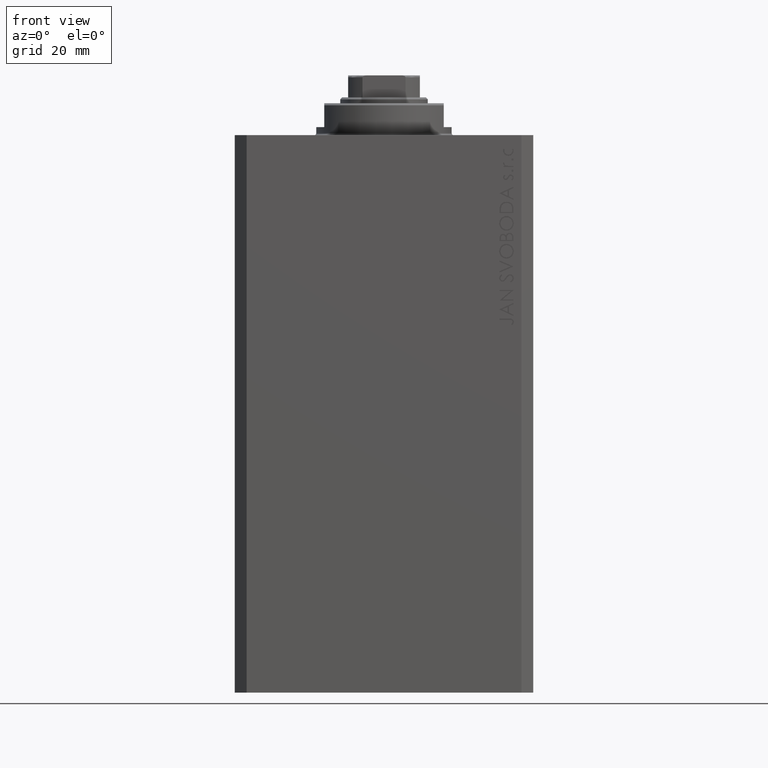
[diagram: clean part render]
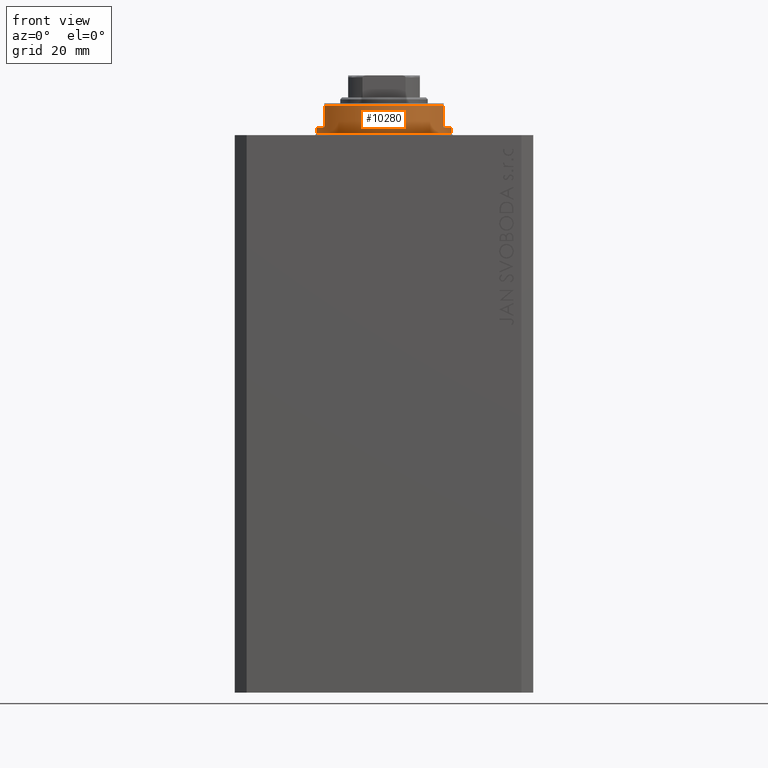
[diagram: same view with one face highlighted and labeled with its STEP entity id]
A machine part, front view. The second image highlights one B-rep face of the part: STEP entity #10280.
In plain terms, the highlighted cylindrical surface (partial cylindrical patch) has radius 17 mm, axis along (0, 0, -1).
Its self-contained STEP definition (entity closure, byte-faithful):
#1609 = AXIS2_PLACEMENT_3D ( 'NONE', #36716, #8693, #37841 ) ;
#2360 = DIRECTION ( 'NONE',  ( -1.000000000000000000, 0.000000000000000000, 0.000000000000000000 ) ) ;
#2746 = ORIENTED_EDGE ( 'NONE', *, *, #15701, .T. ) ;
#3391 = LINE ( 'NONE', #10335, #9390 ) ;
#4942 = VERTEX_POINT ( 'NONE', #33736 ) ;
#5671 = CARTESIAN_POINT ( 'NONE',  ( 0.000000000000000000, 0.000000000000000000, -0.5000000000000004441 ) ) ;
#5916 = FACE_OUTER_BOUND ( 'NONE', #17096, .T. ) ;
#7440 = ORIENTED_EDGE ( 'NONE', *, *, #38996, .F. ) ;
#8315 = CARTESIAN_POINT ( 'NONE',  ( -17.00000000000000000, 2.081899558550500280E-15, -2.000000000000000000 ) ) ;
#8693 = DIRECTION ( 'NONE',  ( 0.000000000000000000, 0.000000000000000000, -1.000000000000000000 ) ) ;
#9390 = VECTOR ( 'NONE', #17978, 1000.000000000000000 ) ;
#9462 = CIRCLE ( 'NONE', #27775, 17.00000000000000000 ) ;
#9673 = VERTEX_POINT ( 'NONE', #19652 ) ;
#9969 = DIRECTION ( 'NONE',  ( -0.000000000000000000, -0.000000000000000000, 1.000000000000000000 ) ) ;
#10280 = ADVANCED_FACE ( 'NONE', ( #5916 ), #20971, .T. ) ;
#10335 = CARTESIAN_POINT ( 'NONE',  ( -17.00000000000000000, 2.081899558550500280E-15, -8.000000000000000000 ) ) ;
#10621 = VECTOR ( 'NONE', #37636, 1000.000000000000000 ) ;
#13647 = DIRECTION ( 'NONE',  ( -0.000000000000000000, -0.000000000000000000, 1.000000000000000000 ) ) ;
#14724 = VERTEX_POINT ( 'NONE', #18387 ) ;
#15071 = EDGE_CURVE ( 'NONE', #9673, #28329, #36693, .T. ) ;
#15350 = AXIS2_PLACEMENT_3D ( 'NONE', #32427, #17635, #47218 ) ;
#15701 = EDGE_CURVE ( 'NONE', #41136, #4942, #22963, .T. ) ;
#16008 = VECTOR ( 'NONE', #27444, 1000.000000000000000 ) ;
#17096 = EDGE_LOOP ( 'NONE', ( #47107, #20245, #42233, #2746, #38492, #7440, #37398, #26567 ) ) ;
#17331 = CARTESIAN_POINT ( 'NONE',  ( -15.00000000000000000, -8.000000000000001776, -8.000000000000000000 ) ) ;
#17370 = DIRECTION ( 'NONE',  ( 1.000000000000000000, 0.000000000000000000, 0.000000000000000000 ) ) ;
#17635 = DIRECTION ( 'NONE',  ( 0.000000000000000000, 0.000000000000000000, 1.000000000000000000 ) ) ;
#17978 = DIRECTION ( 'NONE',  ( -0.000000000000000000, -0.000000000000000000, 1.000000000000000000 ) ) ;
#18387 = CARTESIAN_POINT ( 'NONE',  ( 17.00000000000000000, 0.000000000000000000, -0.5000000000000004441 ) ) ;
#19023 = EDGE_CURVE ( 'NONE', #36854, #4942, #26647, .T. ) ;
#19652 = CARTESIAN_POINT ( 'NONE',  ( -14.99999999999999645, -8.000000000000003553, -2.000000000000000000 ) ) ;
#20245 = ORIENTED_EDGE ( 'NONE', *, *, #15071, .F. ) ;
#20971 = CYLINDRICAL_SURFACE ( 'NONE', #30920, 17.00000000000000000 ) ;
#21509 = LINE ( 'NONE', #27990, #39906 ) ;
#22323 = CARTESIAN_POINT ( 'NONE',  ( -17.00000000000000000, 2.081899558550500280E-15, -0.5000000000000004441 ) ) ;
#22963 = CIRCLE ( 'NONE', #15350, 17.00000000000000000 ) ;
#23071 = CARTESIAN_POINT ( 'NONE',  ( 15.00000000000000000, -8.000000000000001776, -8.000000000000000000 ) ) ;
#24667 = EDGE_CURVE ( 'NONE', #9673, #41136, #39287, .T. ) ;
#26284 = CARTESIAN_POINT ( 'NONE',  ( 17.00000000000000000, 0.000000000000000000, -2.000000000000000000 ) ) ;
#26567 = ORIENTED_EDGE ( 'NONE', *, *, #44737, .T. ) ;
#26647 = LINE ( 'NONE', #23071, #10621 ) ;
#27444 = DIRECTION ( 'NONE',  ( 0.000000000000000000, 0.000000000000000000, -1.000000000000000000 ) ) ;
#27661 = CARTESIAN_POINT ( 'NONE',  ( 0.000000000000000000, 0.000000000000000000, -8.000000000000000000 ) ) ;
#27695 = CARTESIAN_POINT ( 'NONE',  ( 0.000000000000000000, 0.000000000000000000, -2.000000000000000000 ) ) ;
#27775 = AXIS2_PLACEMENT_3D ( 'NONE', #27695, #34372, #2360 ) ;
#27990 = CARTESIAN_POINT ( 'NONE',  ( 17.00000000000000000, 0.000000000000000000, -8.000000000000000000 ) ) ;
#28329 = VERTEX_POINT ( 'NONE', #8315 ) ;
#28675 = CARTESIAN_POINT ( 'NONE',  ( 14.99999999999999645, -8.000000000000003553, -2.000000000000000000 ) ) ;
#28704 = CIRCLE ( 'NONE', #30252, 17.00000000000000000 ) ;
#30252 = AXIS2_PLACEMENT_3D ( 'NONE', #5671, #31479, #38865 ) ;
#30920 = AXIS2_PLACEMENT_3D ( 'NONE', #27661, #9969, #17370 ) ;
#31479 = DIRECTION ( 'NONE',  ( -0.000000000000000000, -0.000000000000000000, -1.000000000000000000 ) ) ;
#31483 = EDGE_CURVE ( 'NONE', #28329, #32532, #3391, .T. ) ;
#32427 = CARTESIAN_POINT ( 'NONE',  ( 0.000000000000000000, 0.000000000000000000, -7.500000000000007105 ) ) ;
#32532 = VERTEX_POINT ( 'NONE', #22323 ) ;
#33736 = CARTESIAN_POINT ( 'NONE',  ( 15.00000000000000000, -8.000000000000001776, -7.500000000000007105 ) ) ;
#34372 = DIRECTION ( 'NONE',  ( 0.000000000000000000, 0.000000000000000000, -1.000000000000000000 ) ) ;
#36693 = CIRCLE ( 'NONE', #1609, 17.00000000000000000 ) ;
#36716 = CARTESIAN_POINT ( 'NONE',  ( 0.000000000000000000, 0.000000000000000000, -2.000000000000000000 ) ) ;
#36854 = VERTEX_POINT ( 'NONE', #28675 ) ;
#36905 = EDGE_CURVE ( 'NONE', #45195, #14724, #21509, .T. ) ;
#37398 = ORIENTED_EDGE ( 'NONE', *, *, #36905, .T. ) ;
#37636 = DIRECTION ( 'NONE',  ( 0.000000000000000000, 0.000000000000000000, -1.000000000000000000 ) ) ;
#37841 = DIRECTION ( 'NONE',  ( -1.000000000000000000, 0.000000000000000000, 0.000000000000000000 ) ) ;
#38492 = ORIENTED_EDGE ( 'NONE', *, *, #19023, .F. ) ;
#38865 = DIRECTION ( 'NONE',  ( 1.000000000000000000, 0.000000000000000000, 0.000000000000000000 ) ) ;
#38996 = EDGE_CURVE ( 'NONE', #45195, #36854, #9462, .T. ) ;
#39287 = LINE ( 'NONE', #17331, #16008 ) ;
#39906 = VECTOR ( 'NONE', #13647, 1000.000000000000000 ) ;
#40433 = CARTESIAN_POINT ( 'NONE',  ( -15.00000000000000000, -8.000000000000001776, -7.500000000000007105 ) ) ;
#41136 = VERTEX_POINT ( 'NONE', #40433 ) ;
#42233 = ORIENTED_EDGE ( 'NONE', *, *, #24667, .T. ) ;
#44737 = EDGE_CURVE ( 'NONE', #14724, #32532, #28704, .T. ) ;
#45195 = VERTEX_POINT ( 'NONE', #26284 ) ;
#47107 = ORIENTED_EDGE ( 'NONE', *, *, #31483, .F. ) ;
#47218 = DIRECTION ( 'NONE',  ( -1.000000000000000000, 0.000000000000000000, 0.000000000000000000 ) ) ;